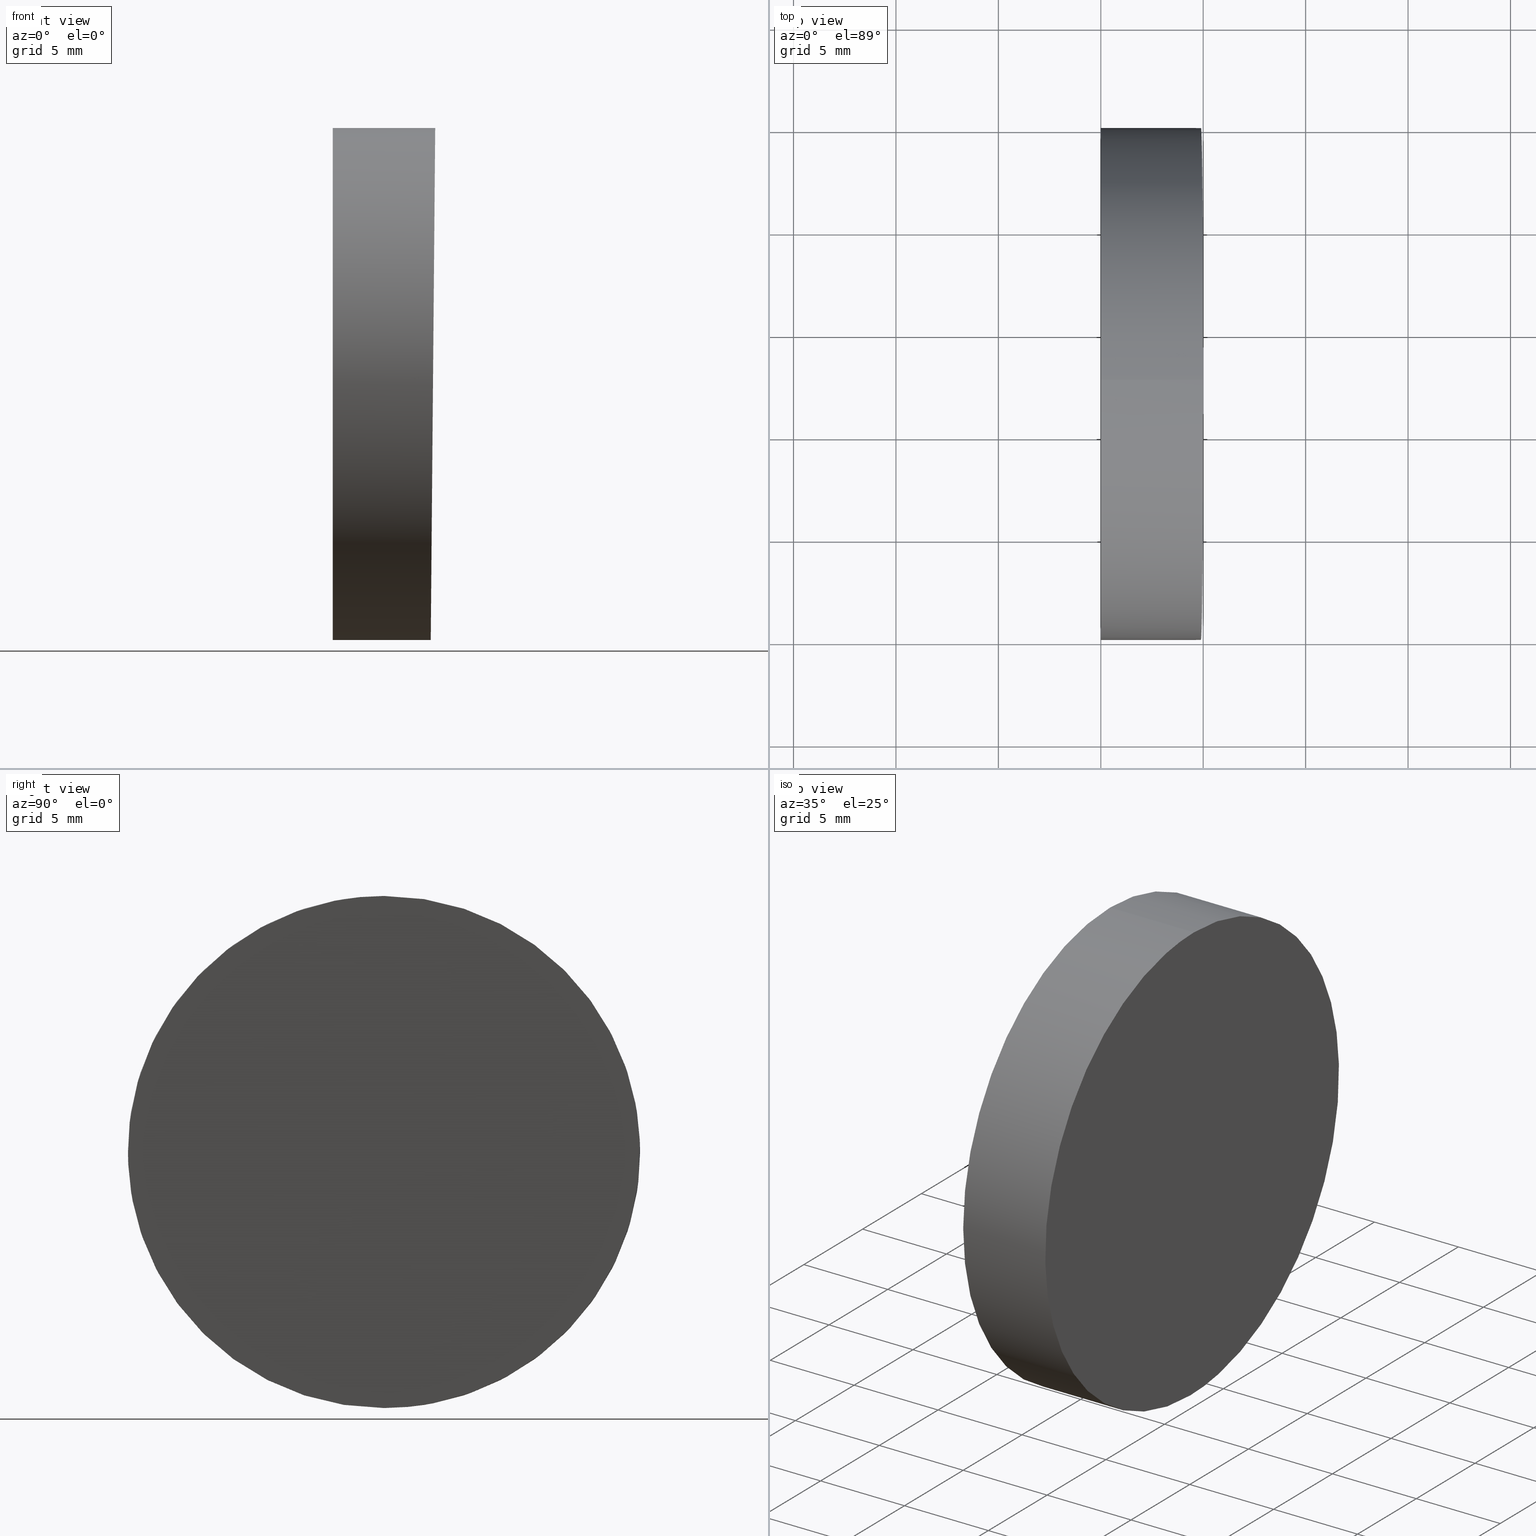
[diagram: canonical four-view strip — front | top / right | iso, engineering-drawing reading convention]
A machine part, canonical four-view strip (front | top / right | iso — engineering-drawing reading convention). The complete STEP part file that produces these views, byte-faithful:
ISO-10303-21;
HEADER;
FILE_DESCRIPTION (( 'STEP AP214' ),
    '1' );
FILE_NAME ('349506.STEP',
    '2019-08-13T02:43:11',
    ( 'user' ),
    ( '΢���й�' ),
    'SwSTEP 2.0',
    'SolidWorks 2016',
    '' );
FILE_SCHEMA (( 'AUTOMOTIVE_DESIGN' ));
ENDSEC;

DATA;
#1 = PRODUCT ( '349506', '349506', '', ( #127 ) ) ;
#2 = ORIENTED_EDGE ( 'NONE', *, *, #58, .F. ) ;
#3 = MECHANICAL_DESIGN_GEOMETRIC_PRESENTATION_REPRESENTATION (  '', ( #137 ), #19 ) ;
#4 = FACE_OUTER_BOUND ( 'NONE', #73, .T. ) ;
#5 = CARTESIAN_POINT ( 'NONE',  ( 0.0000000000000000000, 12.50000000000000000, 0.0000000000000000000 ) ) ;
#6 = FILL_AREA_STYLE ('',( #98 ) ) ;
#7 = LINE ( 'NONE', #45, #60 ) ;
#8 =( BOUNDED_CURVE ( )  B_SPLINE_CURVE ( 3, ( #23, #83, #33, #109 ),
 .UNSPECIFIED., .F., .T. ) 
 B_SPLINE_CURVE_WITH_KNOTS ( ( 4, 4 ),
 ( 3.141592653589793100, 6.283185307179586200 ),
 .UNSPECIFIED. ) 
 CURVE ( )  GEOMETRIC_REPRESENTATION_ITEM ( )  RATIONAL_B_SPLINE_CURVE ( ( 1.000000000000000000, 0.3333333333333333700, 0.3333333333333333700, 1.000000000000000000 ) ) 
 REPRESENTATION_ITEM ( '' )  );
#9 = AXIS2_PLACEMENT_3D ( 'NONE', #35, #85, #97 ) ;
#10 = CIRCLE ( 'NONE', #131, 12.50000000000000000 ) ;
#11 = CARTESIAN_POINT ( 'NONE',  ( 5.000000000000003600, 12.50000000000000000, 12.50000000000000000 ) ) ;
#12 = FILL_AREA_STYLE_COLOUR ( '', #67 ) ;
#13 = ADVANCED_FACE ( 'NONE', ( #21 ), #47, .T. ) ;
#14 =( NAMED_UNIT ( * ) PLANE_ANGLE_UNIT ( ) SI_UNIT ( $, .RADIAN. ) );
#15 = EDGE_CURVE ( 'NONE', #114, #80, #31, .T. ) ;
#16 = DIRECTION ( 'NONE',  ( 1.000000000000000000, 0.0000000000000000000, 0.0000000000000000000 ) ) ;
#17 = DIRECTION ( 'NONE',  ( 0.0000000000000000000, 0.0000000000000000000, 1.000000000000000000 ) ) ;
#18 = SURFACE_STYLE_USAGE ( .BOTH. , #77 ) ;
#19 =( GEOMETRIC_REPRESENTATION_CONTEXT ( 3 ) GLOBAL_UNCERTAINTY_ASSIGNED_CONTEXT ( ( #121 ) ) GLOBAL_UNIT_ASSIGNED_CONTEXT ( ( #46, #43, #122 ) ) REPRESENTATION_CONTEXT ( 'NONE', 'WORKASPACE' ) );
#20 = FACE_OUTER_BOUND ( 'NONE', #82, .T. ) ;
#21 = FACE_OUTER_BOUND ( 'NONE', #118, .T. ) ;
#22 = PRODUCT_DEFINITION_SHAPE ( 'NONE', 'NONE',  #115 ) ;
#23 = CARTESIAN_POINT ( 'NONE',  ( 5.000000000000003600, 12.50000000000000000, 12.50000000000000000 ) ) ;
#24 = CIRCLE ( 'NONE', #9, 12.50000000000000000 ) ;
#25 = PRESENTATION_LAYER_ASSIGNMENT (  '', '', ( #137 ) ) ;
#26 = PLANE ( 'NONE',  #129 ) ;
#27 = DIRECTION ( 'NONE',  ( 0.008726535498366981900, 0.0000000000000000000, 0.9999619230641713100 ) ) ;
#28 =( NAMED_UNIT ( * ) PLANE_ANGLE_UNIT ( ) SI_UNIT ( $, .RADIAN. ) );
#29 = VERTEX_POINT ( 'NONE', #51 ) ;
#30 = ORIENTED_EDGE ( 'NONE', *, *, #102, .T. ) ;
#31 =( BOUNDED_CURVE ( )  B_SPLINE_CURVE ( 3, ( #123, #133, #64, #11 ),
 .UNSPECIFIED., .F., .F. ) 
 B_SPLINE_CURVE_WITH_KNOTS ( ( 4, 4 ),
 ( 0.0000000000000000000, 3.141592653589793100 ),
 .UNSPECIFIED. ) 
 CURVE ( )  GEOMETRIC_REPRESENTATION_ITEM ( )  RATIONAL_B_SPLINE_CURVE ( ( 1.000000000000000000, 0.3333333333333333700, 0.3333333333333333700, 1.000000000000000000 ) ) 
 REPRESENTATION_ITEM ( '' )  );
#32 = ORIENTED_EDGE ( 'NONE', *, *, #102, .F. ) ;
#33 = CARTESIAN_POINT ( 'NONE',  ( 4.781828305231207400, 37.50000000000000000, -12.50000000000000000 ) ) ;
#34 = CARTESIAN_POINT ( 'NONE',  ( 0.0000000000000000000, 12.50000000000000000, 12.50000000000000000 ) ) ;
#35 = CARTESIAN_POINT ( 'NONE',  ( 0.0000000000000000000, 12.50000000000000000, 0.0000000000000000000 ) ) ;
#36 = CARTESIAN_POINT ( 'NONE',  ( 4.781828305231207400, 12.50000000000000200, -12.50000000000000000 ) ) ;
#37 = CARTESIAN_POINT ( 'NONE',  ( 0.0000000000000000000, 0.0000000000000000000, 0.0000000000000000000 ) ) ;
#38 = EDGE_LOOP ( 'NONE', ( #48, #68 ) ) ;
#39 = ADVANCED_FACE ( 'NONE', ( #20 ), #100, .T. ) ;
#40 = SURFACE_STYLE_FILL_AREA ( #6 ) ;
#41 = DIRECTION ( 'NONE',  ( 0.0000000000000000000, 0.0000000000000000000, 1.000000000000000000 ) ) ;
#42 = ADVANCED_BREP_SHAPE_REPRESENTATION ( '349506', ( #92, #107 ), #61 ) ;
#43 =( NAMED_UNIT ( * ) PLANE_ANGLE_UNIT ( ) SI_UNIT ( $, .RADIAN. ) );
#44 = DIRECTION ( 'NONE',  ( -1.000000000000000000, -0.0000000000000000000, -0.0000000000000000000 ) ) ;
#45 = CARTESIAN_POINT ( 'NONE',  ( 12.50000000000000000, 12.50000000000000200, -12.50000000000000000 ) ) ;
#46 =( LENGTH_UNIT ( ) NAMED_UNIT ( * ) SI_UNIT ( .MILLI., .METRE. ) );
#47 = CYLINDRICAL_SURFACE ( 'NONE', #101, 12.50000000000000000 ) ;
#48 = ORIENTED_EDGE ( 'NONE', *, *, #117, .T. ) ;
#49 = VERTEX_POINT ( 'NONE', #34 ) ;
#50 = LINE ( 'NONE', #111, #91 ) ;
#51 = CARTESIAN_POINT ( 'NONE',  ( 0.0000000000000000000, 12.50000000000000200, -12.50000000000000000 ) ) ;
#52 = SURFACE_STYLE_USAGE ( .BOTH. , #132 ) ;
#53 = PLANE ( 'NONE',  #94 ) ;
#54 = CARTESIAN_POINT ( 'NONE',  ( 5.000000000000003600, 25.00000000000000000, 12.50000000000000000 ) ) ;
#55 = APPLICATION_PROTOCOL_DEFINITION ( 'draft international standard', 'automotive_design', 1998, #65 ) ;
#56 = ORIENTED_EDGE ( 'NONE', *, *, #134, .F. ) ;
#57 = APPLICATION_CONTEXT ( 'automotive_design' ) ;
#58 = EDGE_CURVE ( 'NONE', #80, #114, #8, .T. ) ;
#59 = ORIENTED_EDGE ( 'NONE', *, *, #63, .F. ) ;
#60 = VECTOR ( 'NONE', #126, 1000.000000000000000 ) ;
#61 =( GEOMETRIC_REPRESENTATION_CONTEXT ( 3 ) GLOBAL_UNCERTAINTY_ASSIGNED_CONTEXT ( ( #66 ) ) GLOBAL_UNIT_ASSIGNED_CONTEXT ( ( #72, #14, #87 ) ) REPRESENTATION_CONTEXT ( 'NONE', 'WORKASPACE' ) );
#62 = DIRECTION ( 'NONE',  ( 1.000000000000000000, 0.0000000000000000000, 0.0000000000000000000 ) ) ;
#63 = EDGE_CURVE ( 'NONE', #29, #49, #24, .T. ) ;
#64 = CARTESIAN_POINT ( 'NONE',  ( 5.000000000000003600, -12.50000000000000500, 12.50000000000000000 ) ) ;
#65 = APPLICATION_CONTEXT ( 'automotive_design' ) ;
#66 = UNCERTAINTY_MEASURE_WITH_UNIT (LENGTH_MEASURE( 1.000000000000000100E-005 ), #72, 'distance_accuracy_value', 'NONE');
#67 = COLOUR_RGB ( '',1.000000000000000000, 1.000000000000000000, 1.000000000000000000 ) ;
#68 = ORIENTED_EDGE ( 'NONE', *, *, #63, .T. ) ;
#69 = PRESENTATION_STYLE_ASSIGNMENT (( #52 ) ) ;
#70 = CARTESIAN_POINT ( 'NONE',  ( 12.50000000000000000, 12.50000000000000000, 0.0000000000000000000 ) ) ;
#71 = FILL_AREA_STYLE ('',( #12 ) ) ;
#72 =( LENGTH_UNIT ( ) NAMED_UNIT ( * ) SI_UNIT ( .MILLI., .METRE. ) );
#73 = EDGE_LOOP ( 'NONE', ( #2, #116 ) ) ;
#74 = MECHANICAL_DESIGN_GEOMETRIC_PRESENTATION_REPRESENTATION (  '', ( #130 ), #81 ) ;
#75 = DIRECTION ( 'NONE',  ( -1.000000000000000000, 0.0000000000000000000, 0.0000000000000000000 ) ) ;
#76 = SHAPE_DEFINITION_REPRESENTATION ( #22, #42 ) ;
#77 = SURFACE_SIDE_STYLE ('',( #40 ) ) ;
#78 = ORIENTED_EDGE ( 'NONE', *, *, #58, .T. ) ;
#79 = PRODUCT_DEFINITION_CONTEXT ( 'detailed design', #57, 'design' ) ;
#80 = VERTEX_POINT ( 'NONE', #110 ) ;
#81 =( GEOMETRIC_REPRESENTATION_CONTEXT ( 3 ) GLOBAL_UNCERTAINTY_ASSIGNED_CONTEXT ( ( #105 ) ) GLOBAL_UNIT_ASSIGNED_CONTEXT ( ( #90, #28, #99 ) ) REPRESENTATION_CONTEXT ( 'NONE', 'WORKASPACE' ) );
#82 = EDGE_LOOP ( 'NONE', ( #56, #140, #30, #59 ) ) ;
#83 = CARTESIAN_POINT ( 'NONE',  ( 5.000000000000003600, 37.50000000000000000, 12.50000000000000500 ) ) ;
#84 = FACE_OUTER_BOUND ( 'NONE', #38, .T. ) ;
#85 = DIRECTION ( 'NONE',  ( -1.000000000000000000, 0.0000000000000000000, 0.0000000000000000000 ) ) ;
#86 = DIRECTION ( 'NONE',  ( -1.000000000000000000, -0.0000000000000000000, -0.0000000000000000000 ) ) ;
#87 =( NAMED_UNIT ( * ) SI_UNIT ( $, .STERADIAN. ) SOLID_ANGLE_UNIT ( ) );
#88 = DIRECTION ( 'NONE',  ( 0.0000000000000000000, 0.0000000000000000000, -1.000000000000000000 ) ) ;
#89 = DIRECTION ( 'NONE',  ( -0.9999619230641714200, 0.0000000000000000000, 0.008726535498366983600 ) ) ;
#90 =( LENGTH_UNIT ( ) NAMED_UNIT ( * ) SI_UNIT ( .MILLI., .METRE. ) );
#91 = VECTOR ( 'NONE', #44, 1000.000000000000000 ) ;
#92 = MANIFOLD_SOLID_BREP ( '�г�-����2', #103 ) ;
#93 = ADVANCED_FACE ( 'NONE', ( #84 ), #53, .F. ) ;
#94 = AXIS2_PLACEMENT_3D ( 'NONE', #95, #16, #88 ) ;
#95 = CARTESIAN_POINT ( 'NONE',  ( 1.734723475976807100E-015, 25.00000000000000000, -12.50000000000000000 ) ) ;
#96 = DIRECTION ( 'NONE',  ( -1.000000000000000000, -0.0000000000000000000, -0.0000000000000000000 ) ) ;
#97 = DIRECTION ( 'NONE',  ( 0.0000000000000000000, 0.0000000000000000000, 1.000000000000000000 ) ) ;
#98 = FILL_AREA_STYLE_COLOUR ( '', #104 ) ;
#99 =( NAMED_UNIT ( * ) SI_UNIT ( $, .STERADIAN. ) SOLID_ANGLE_UNIT ( ) );
#100 = CYLINDRICAL_SURFACE ( 'NONE', #112, 12.50000000000000000 ) ;
#101 = AXIS2_PLACEMENT_3D ( 'NONE', #70, #96, #136 ) ;
#102 = EDGE_CURVE ( 'NONE', #80, #49, #50, .T. ) ;
#103 = CLOSED_SHELL ( 'NONE', ( #13, #93, #124, #39 ) ) ;
#104 = COLOUR_RGB ( '',1.000000000000000000, 1.000000000000000000, 1.000000000000000000 ) ;
#105 = UNCERTAINTY_MEASURE_WITH_UNIT (LENGTH_MEASURE( 1.000000000000000100E-005 ), #90, 'distance_accuracy_value', 'NONE');
#106 = PRESENTATION_STYLE_ASSIGNMENT (( #18 ) ) ;
#107 = AXIS2_PLACEMENT_3D ( 'NONE', #37, #113, #62 ) ;
#108 = ORIENTED_EDGE ( 'NONE', *, *, #134, .T. ) ;
#109 = CARTESIAN_POINT ( 'NONE',  ( 4.781828305231207400, 12.50000000000000200, -12.50000000000000000 ) ) ;
#110 = CARTESIAN_POINT ( 'NONE',  ( 5.000000000000003600, 12.50000000000000000, 12.50000000000000000 ) ) ;
#111 = CARTESIAN_POINT ( 'NONE',  ( 12.50000000000000000, 12.50000000000000000, 12.50000000000000000 ) ) ;
#112 = AXIS2_PLACEMENT_3D ( 'NONE', #120, #86, #41 ) ;
#113 = DIRECTION ( 'NONE',  ( 0.0000000000000000000, 0.0000000000000000000, 1.000000000000000000 ) ) ;
#114 = VERTEX_POINT ( 'NONE', #36 ) ;
#115 = PRODUCT_DEFINITION ( 'δ֪', '', #125, #79 ) ;
#116 = ORIENTED_EDGE ( 'NONE', *, *, #15, .F. ) ;
#117 = EDGE_CURVE ( 'NONE', #49, #29, #10, .T. ) ;
#118 = EDGE_LOOP ( 'NONE', ( #78, #108, #135, #32 ) ) ;
#119 = PRESENTATION_LAYER_ASSIGNMENT (  '', '', ( #130 ) ) ;
#120 = CARTESIAN_POINT ( 'NONE',  ( 12.50000000000000000, 12.50000000000000000, 0.0000000000000000000 ) ) ;
#121 = UNCERTAINTY_MEASURE_WITH_UNIT (LENGTH_MEASURE( 1.000000000000000100E-005 ), #46, 'distance_accuracy_value', 'NONE');
#122 =( NAMED_UNIT ( * ) SI_UNIT ( $, .STERADIAN. ) SOLID_ANGLE_UNIT ( ) );
#123 = CARTESIAN_POINT ( 'NONE',  ( 4.781828305231207400, 12.50000000000000200, -12.50000000000000000 ) ) ;
#124 = ADVANCED_FACE ( 'NONE', ( #4 ), #26, .F. ) ;
#125 = PRODUCT_DEFINITION_FORMATION_WITH_SPECIFIED_SOURCE ( '�κ�', '', #1, .NOT_KNOWN. ) ;
#126 = DIRECTION ( 'NONE',  ( -1.000000000000000000, -0.0000000000000000000, -0.0000000000000000000 ) ) ;
#127 = PRODUCT_CONTEXT ( 'NONE', #65, 'mechanical' ) ;
#128 = PRODUCT_RELATED_PRODUCT_CATEGORY ( 'part', '', ( #1 ) ) ;
#129 = AXIS2_PLACEMENT_3D ( 'NONE', #54, #89, #27 ) ;
#130 = STYLED_ITEM ( 'NONE', ( #106 ), #42 ) ;
#131 = AXIS2_PLACEMENT_3D ( 'NONE', #5, #75, #17 ) ;
#132 = SURFACE_SIDE_STYLE ('',( #139 ) ) ;
#133 = CARTESIAN_POINT ( 'NONE',  ( 4.781828305231207400, -12.50000000000000500, -12.50000000000000000 ) ) ;
#134 = EDGE_CURVE ( 'NONE', #114, #29, #7, .T. ) ;
#135 = ORIENTED_EDGE ( 'NONE', *, *, #117, .F. ) ;
#136 = DIRECTION ( 'NONE',  ( 0.0000000000000000000, 0.0000000000000000000, 1.000000000000000000 ) ) ;
#137 = STYLED_ITEM ( 'NONE', ( #69 ), #92 ) ;
#138 = APPLICATION_PROTOCOL_DEFINITION ( 'draft international standard', 'automotive_design', 1998, #57 ) ;
#139 = SURFACE_STYLE_FILL_AREA ( #71 ) ;
#140 = ORIENTED_EDGE ( 'NONE', *, *, #15, .T. ) ;
ENDSEC;
END-ISO-10303-21;
